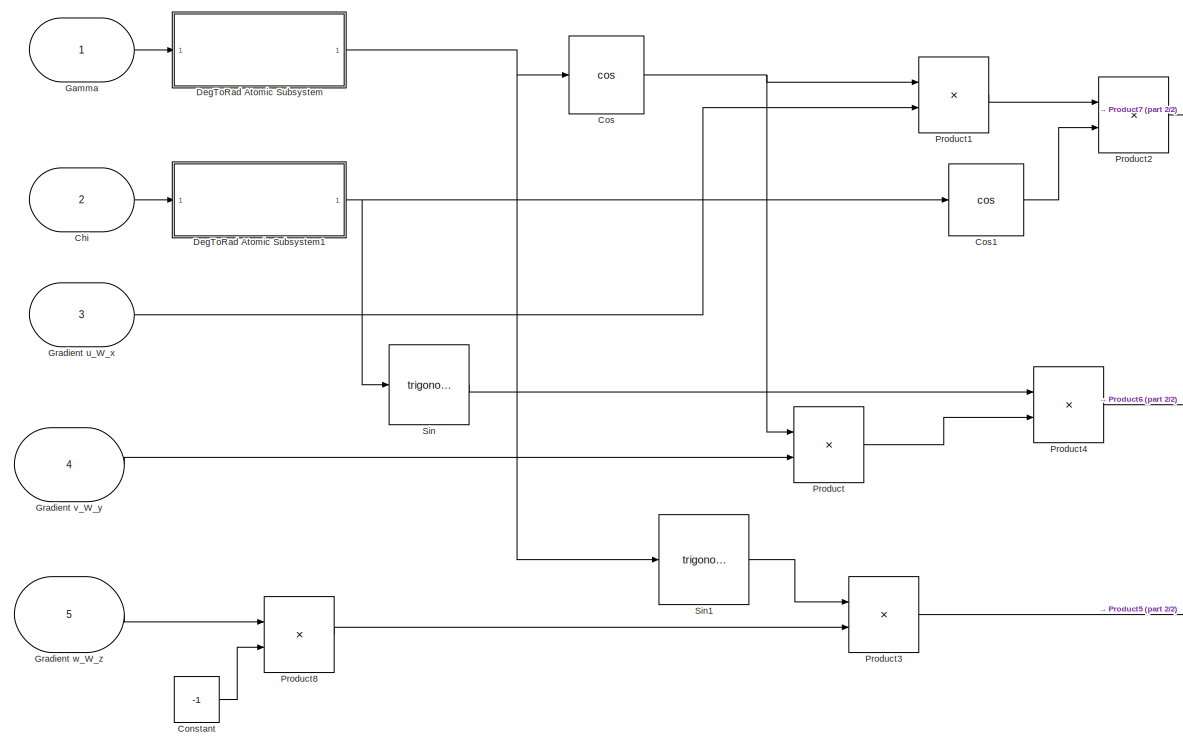
[diagram: root canvas - part 1/2, center side, full height]
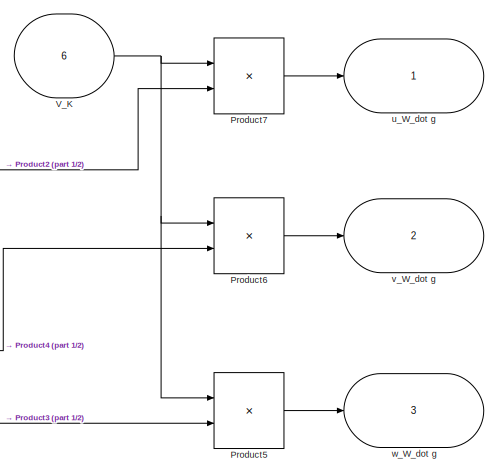
[diagram: root canvas - part 2/2, middle right region]
MODEL slx_a1a41fabff58
KIND model
CONFIG AbsTol = auto
CONFIG EnableMultiTasking = off
CONFIG FixedStep = auto
CONFIG MaxStep = auto
CONFIG MinStep = auto
CONFIG RelTol = 1e-3
CONFIG SampleTimeConstraint = Unconstrained
CONFIG SolverName = VariableStepAuto
CONFIG StartTime = 0.0
CONFIG StopTime = 10.0
BLOCK [Inport] Chi
  Port = 2
BLOCK [Constant] Constant
  Value = -1
BLOCK [Trigonometry] Cos
  Operator = cos
  Ports = [1, 1]
BLOCK [Trigonometry] Cos1
  Operator = cos
  Ports = [1, 1]
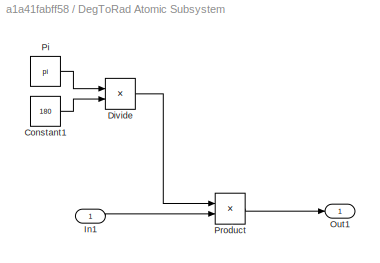
BLOCK [SubSystem] DegToRad Atomic Subsystem
  Ports = [1, 1]
  RequestExecContextInheritance = off
  TreatAsAtomicUnit = on
BLOCK [Constant] DegToRad Atomic Subsystem/Constant1
  Value = 180
BLOCK [Product] DegToRad Atomic Subsystem/Divide
  Inputs = */
  Ports = [2, 1]
BLOCK [Inport] DegToRad Atomic Subsystem/In1
BLOCK [Outport] DegToRad Atomic Subsystem/Out1
BLOCK [Constant] DegToRad Atomic Subsystem/Pi
  OutDataTypeStr = Inherit: Inherit via back propagation
  Value = pi
BLOCK [Product] DegToRad Atomic Subsystem/Product
  Ports = [2, 1]
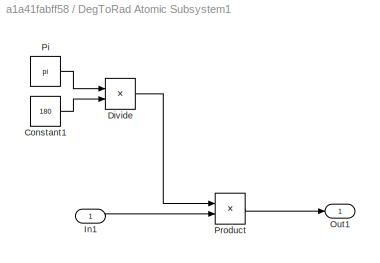
BLOCK [SubSystem] DegToRad Atomic Subsystem1
  Ports = [1, 1]
  RequestExecContextInheritance = off
  TreatAsAtomicUnit = on
BLOCK [Constant] DegToRad Atomic Subsystem1/Constant1
  Value = 180
BLOCK [Product] DegToRad Atomic Subsystem1/Divide
  Inputs = */
  Ports = [2, 1]
BLOCK [Inport] DegToRad Atomic Subsystem1/In1
BLOCK [Outport] DegToRad Atomic Subsystem1/Out1
BLOCK [Constant] DegToRad Atomic Subsystem1/Pi
  OutDataTypeStr = Inherit: Inherit via back propagation
  Value = pi
BLOCK [Product] DegToRad Atomic Subsystem1/Product
  Ports = [2, 1]
BLOCK [Inport] Gamma
BLOCK [Inport] Gradient u_W_x
  Port = 3
BLOCK [Inport] Gradient v_W_y
  Port = 4
BLOCK [Inport] Gradient w_W_z
  Port = 5
BLOCK [Product] Product
  Ports = [2, 1]
BLOCK [Product] Product1
  Ports = [2, 1]
BLOCK [Product] Product2
  Ports = [2, 1]
BLOCK [Product] Product3
  Ports = [2, 1]
BLOCK [Product] Product4
  Ports = [2, 1]
BLOCK [Product] Product5
  Ports = [2, 1]
BLOCK [Product] Product6
  Ports = [2, 1]
BLOCK [Product] Product7
  Ports = [2, 1]
BLOCK [Product] Product8
  Ports = [2, 1]
BLOCK [Trigonometry] Sin
  Ports = [1, 1]
BLOCK [Trigonometry] Sin1
  Ports = [1, 1]
BLOCK [Inport] V_K
  Port = 6
BLOCK [Outport] u_W_dot g
BLOCK [Outport] v_W_dot g
  Port = 2
BLOCK [Outport] w_W_dot g
  Port = 3
LINE Chi:1 -> DegToRad Atomic Subsystem1:1
LINE Constant:1 -> Product8:2
LINE Cos1:1 -> Product2:2
NET Cos:1 -> Product1:1, Product:1
LINE DegToRad Atomic Subsystem/Constant1:1 -> DegToRad Atomic Subsystem/Divide:2
LINE DegToRad Atomic Subsystem/Divide:1 -> DegToRad Atomic Subsystem/Product:1
LINE DegToRad Atomic Subsystem/In1:1 -> DegToRad Atomic Subsystem/Product:2
LINE DegToRad Atomic Subsystem/Pi:1 -> DegToRad Atomic Subsystem/Divide:1
LINE DegToRad Atomic Subsystem/Product:1 -> DegToRad Atomic Subsystem/Out1:1
LINE DegToRad Atomic Subsystem1/Constant1:1 -> DegToRad Atomic Subsystem1/Divide:2
LINE DegToRad Atomic Subsystem1/Divide:1 -> DegToRad Atomic Subsystem1/Product:1
LINE DegToRad Atomic Subsystem1/In1:1 -> DegToRad Atomic Subsystem1/Product:2
LINE DegToRad Atomic Subsystem1/Pi:1 -> DegToRad Atomic Subsystem1/Divide:1
LINE DegToRad Atomic Subsystem1/Product:1 -> DegToRad Atomic Subsystem1/Out1:1
NET DegToRad Atomic Subsystem1:1 -> Cos1:1, Sin:1
NET DegToRad Atomic Subsystem:1 -> Cos:1, Sin1:1
LINE Gamma:1 -> DegToRad Atomic Subsystem:1
LINE Gradient u_W_x:1 -> Product1:2
LINE Gradient v_W_y:1 -> Product:2
LINE Gradient w_W_z:1 -> Product8:1
LINE Product1:1 -> Product2:1
LINE Product2:1 -> Product7:2
LINE Product3:1 -> Product5:2
LINE Product4:1 -> Product6:2
LINE Product5:1 -> w_W_dot g:1
LINE Product6:1 -> v_W_dot g:1
LINE Product7:1 -> u_W_dot g:1
LINE Product8:1 -> Product3:2
LINE Product:1 -> Product4:2
LINE Sin1:1 -> Product3:1
LINE Sin:1 -> Product4:1
NET V_K:1 -> Product5:1, Product6:1, Product7:1
note: NET lines group one-source signal fan-out (src -> all destinations, sorted); 1:1 wires keep LINE
